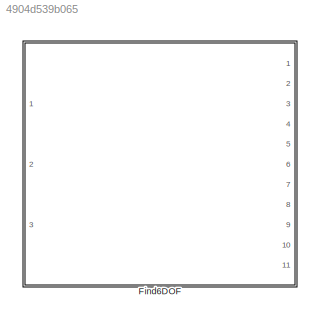
MODEL slx_4904d539b065
KIND library
CONFIG AbsTol = auto
CONFIG EnableMultiTasking = off
CONFIG FixedStep = auto
CONFIG MaxStep = auto
CONFIG MinStep = auto
CONFIG RelTol = 1e-3
CONFIG SampleTimeConstraint = Unconstrained
CONFIG Solver = VariableStepAuto
CONFIG SolverName = VariableStepAuto
CONFIG StartTime = 0.0
CONFIG StopTime = 10.0
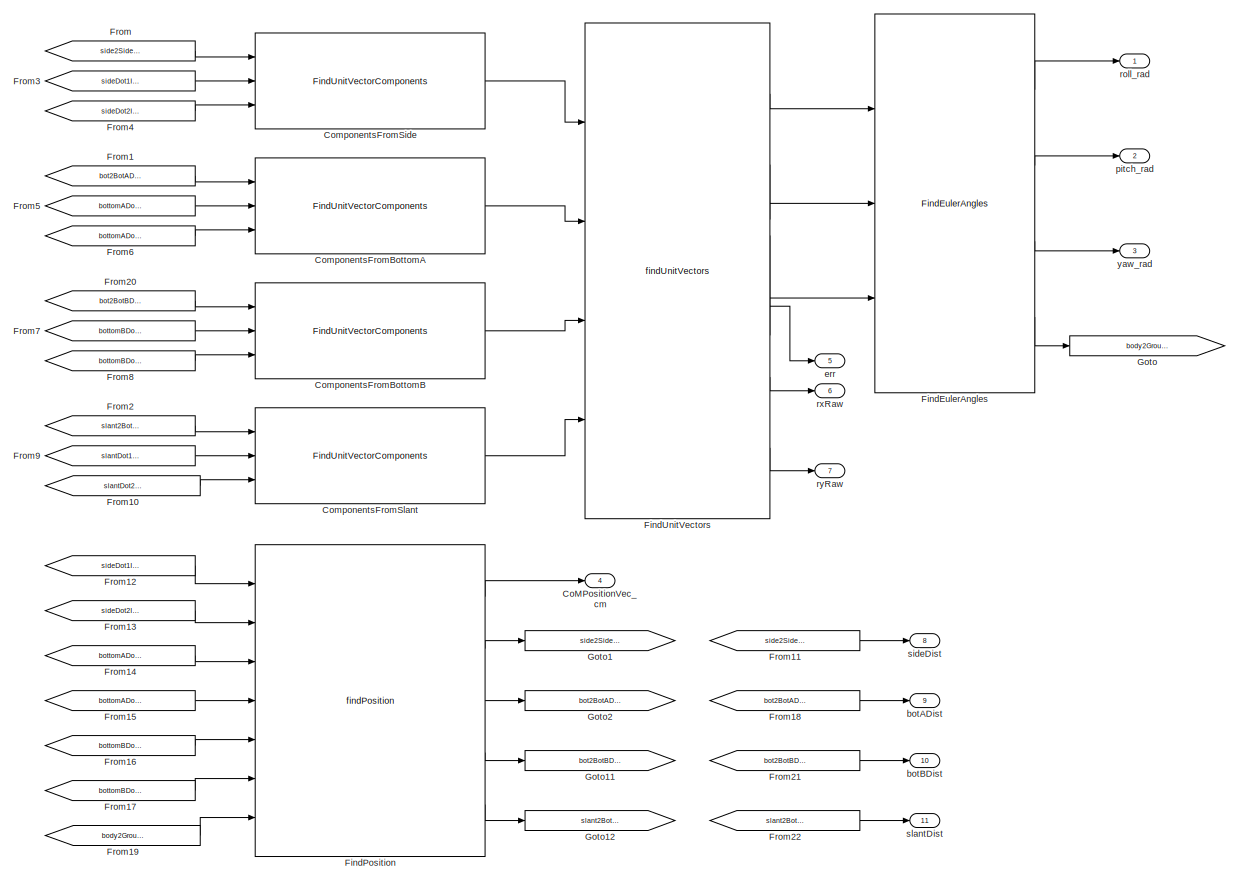
[diagram: Find6DOF - part 1/2, center side, full height]
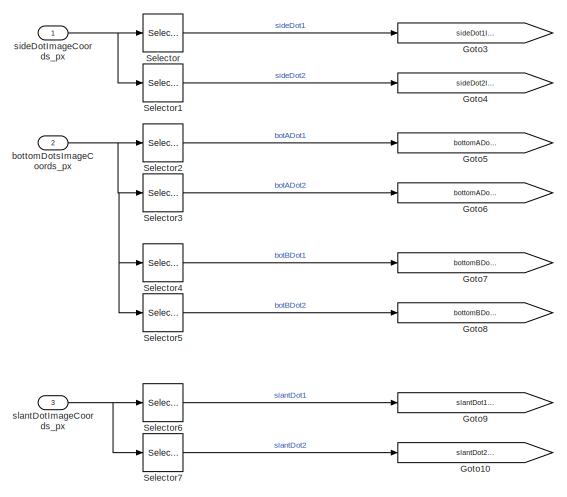
[diagram: Find6DOF - part 2/2, middle left region]
BLOCK [SubSystem] Find6DOF
  Ports = [3, 11]
  RequestExecContextInheritance = off
BLOCK [Outport] Find6DOF/CoMPositionVec_cm
  IconDisplay = Port number
  Port = 4
  Unit = cm
BLOCK [Reference] Find6DOF/ComponentsFromBottomA  REF=FindUnitVectorComponents_ul/FindUnitVectorComponents
  Ports = [3, 1]
  SourceBlock = FindUnitVectorComponents_ul/FindUnitVectorComponents
BLOCK [Reference] Find6DOF/ComponentsFromBottomB  REF=FindUnitVectorComponents_ul/FindUnitVectorComponents
  Ports = [3, 1]
  SourceBlock = FindUnitVectorComponents_ul/FindUnitVectorComponents
BLOCK [Reference] Find6DOF/ComponentsFromSide  REF=FindUnitVectorComponents_ul/FindUnitVectorComponents
  Ports = [3, 1]
  SourceBlock = FindUnitVectorComponents_ul/FindUnitVectorComponents
BLOCK [Reference] Find6DOF/ComponentsFromSlant  REF=FindUnitVectorComponents_ul/FindUnitVectorComponents
  Ports = [3, 1]
  SourceBlock = FindUnitVectorComponents_ul/FindUnitVectorComponents
BLOCK [Reference] Find6DOF/FindEulerAngles  REF=findEulerAngles_ul/FindEulerAngles
  Ports = [3, 4]
  SourceBlock = findEulerAngles_ul/FindEulerAngles
  SourceType = SubSystem
BLOCK [Reference] Find6DOF/FindPosition  REF=findPosition_ul/findPosition
  Ports = [7, 5]
  SourceBlock = findPosition_ul/findPosition
BLOCK [Reference] Find6DOF/FindUnitVectors  REF=findUnitVectors_ul/findUnitVectors
  Ports = [4, 6]
  SourceBlock = findUnitVectors_ul/findUnitVectors
BLOCK [From] Find6DOF/From
  GotoTag = side2SideDist_cm
BLOCK [From] Find6DOF/From1
  GotoTag = bot2BotADist_cm
BLOCK [From] Find6DOF/From10
  GotoTag = slantDot2ImageCoords_px
BLOCK [From] Find6DOF/From11
  GotoTag = side2SideDist_cm
BLOCK [From] Find6DOF/From12
  GotoTag = sideDot1ImageCoords_px
BLOCK [From] Find6DOF/From13
  GotoTag = sideDot2ImageCoords_px
BLOCK [From] Find6DOF/From14
  GotoTag = bottomADot1ImageCoords_px
BLOCK [From] Find6DOF/From15
  GotoTag = bottomADot2ImageCoords_px
BLOCK [From] Find6DOF/From16
  GotoTag = bottomBDot1ImageCoords_px
BLOCK [From] Find6DOF/From17
  GotoTag = bottomBDot2ImageCoords_px
BLOCK [From] Find6DOF/From18
  GotoTag = bot2BotADist_cm
BLOCK [From] Find6DOF/From19
  GotoTag = body2GroundRotationMatrix
BLOCK [From] Find6DOF/From2
  GotoTag = slant2BotBDist_cm
BLOCK [From] Find6DOF/From20
  GotoTag = bot2BotBDist_cm
BLOCK [From] Find6DOF/From21
  GotoTag = bot2BotBDist_cm
BLOCK [From] Find6DOF/From22
  GotoTag = slant2BotBDist_cm
BLOCK [From] Find6DOF/From3
  GotoTag = sideDot1ImageCoords_px
BLOCK [From] Find6DOF/From4
  GotoTag = sideDot2ImageCoords_px
BLOCK [From] Find6DOF/From5
  GotoTag = bottomADot1ImageCoords_px
BLOCK [From] Find6DOF/From6
  GotoTag = bottomADot2ImageCoords_px
BLOCK [From] Find6DOF/From7
  GotoTag = bottomBDot1ImageCoords_px
BLOCK [From] Find6DOF/From8
  GotoTag = bottomBDot2ImageCoords_px
BLOCK [From] Find6DOF/From9
  GotoTag = slantDot1ImageCoords_px
BLOCK [Goto] Find6DOF/Goto
  GotoTag = body2GroundRotationMatrix
BLOCK [Goto] Find6DOF/Goto1
  GotoTag = side2SideDist_cm
BLOCK [Goto] Find6DOF/Goto10
  GotoTag = slantDot2ImageCoords_px
BLOCK [Goto] Find6DOF/Goto11
  GotoTag = bot2BotBDist_cm
BLOCK [Goto] Find6DOF/Goto12
  GotoTag = slant2BotBDist_cm
BLOCK [Goto] Find6DOF/Goto2
  GotoTag = bot2BotADist_cm
BLOCK [Goto] Find6DOF/Goto3
  GotoTag = sideDot1ImageCoords_px
BLOCK [Goto] Find6DOF/Goto4
  GotoTag = sideDot2ImageCoords_px
BLOCK [Goto] Find6DOF/Goto5
  GotoTag = bottomADot1ImageCoords_px
BLOCK [Goto] Find6DOF/Goto6
  GotoTag = bottomADot2ImageCoords_px
BLOCK [Goto] Find6DOF/Goto7
  GotoTag = bottomBDot1ImageCoords_px
BLOCK [Goto] Find6DOF/Goto8
  GotoTag = bottomBDot2ImageCoords_px
BLOCK [Goto] Find6DOF/Goto9
  GotoTag = slantDot1ImageCoords_px
BLOCK [Selector] Find6DOF/Selector
  IndexOptions = Index vector (dialog)
  Indices = [1 2]
  InputPortWidth = 4
  OutputSizes = 1
  Ports = [1, 1]
BLOCK [Selector] Find6DOF/Selector1
  IndexOptions = Index vector (dialog)
  Indices = [3 4]
  InputPortWidth = 4
  OutputSizes = 1
  Ports = [1, 1]
BLOCK [Selector] Find6DOF/Selector2
  IndexOptions = Index vector (dialog)
  Indices = [1 2]
  InputPortWidth = 8
  OutputSizes = 1
  Ports = [1, 1]
BLOCK [Selector] Find6DOF/Selector3
  IndexOptions = Index vector (dialog)
  Indices = [3 4]
  InputPortWidth = 8
  OutputSizes = 1
  Ports = [1, 1]
BLOCK [Selector] Find6DOF/Selector4
  IndexOptions = Index vector (dialog)
  Indices = [5 6]
  InputPortWidth = 8
  OutputSizes = 1
  Ports = [1, 1]
BLOCK [Selector] Find6DOF/Selector5
  IndexOptions = Index vector (dialog)
  Indices = [7 8]
  InputPortWidth = 8
  OutputSizes = 1
  Ports = [1, 1]
BLOCK [Selector] Find6DOF/Selector6
  IndexOptions = Index vector (dialog)
  Indices = [1 2]
  InputPortWidth = 4
  OutputSizes = 1
  Ports = [1, 1]
BLOCK [Selector] Find6DOF/Selector7
  IndexOptions = Index vector (dialog)
  Indices = [3 4]
  InputPortWidth = 4
  OutputSizes = 1
  Ports = [1, 1]
BLOCK [Outport] Find6DOF/botADist
  IconDisplay = Port number
  Port = 9
BLOCK [Outport] Find6DOF/botBDist
  IconDisplay = Port number
  Port = 10
BLOCK [Inport] Find6DOF/bottomDotsImageCoords_px
  IconDisplay = Port number
  Port = 2
BLOCK [Outport] Find6DOF/err
  IconDisplay = Port number
  Port = 5
BLOCK [Outport] Find6DOF/pitch_rad
  IconDisplay = Port number
  Port = 2
  Unit = rad
BLOCK [Outport] Find6DOF/roll_rad
  IconDisplay = Port number
  Unit = rad
BLOCK [Outport] Find6DOF/rxRaw
  IconDisplay = Port number
  Port = 6
BLOCK [Outport] Find6DOF/ryRaw
  IconDisplay = Port number
  Port = 7
BLOCK [Outport] Find6DOF/sideDist
  IconDisplay = Port number
  Port = 8
BLOCK [Inport] Find6DOF/sideDotImageCoords_px
  IconDisplay = Port number
BLOCK [Outport] Find6DOF/slantDist
  IconDisplay = Port number
  Port = 11
BLOCK [Inport] Find6DOF/slantDotImageCoords_px
  IconDisplay = Port number
  Port = 3
BLOCK [Outport] Find6DOF/yaw_rad
  IconDisplay = Port number
  Port = 3
  Unit = rad
LINE Find6DOF/ComponentsFromBottomA:1 -> Find6DOF/FindUnitVectors:2
LINE Find6DOF/ComponentsFromBottomB:1 -> Find6DOF/FindUnitVectors:3
LINE Find6DOF/ComponentsFromSide:1 -> Find6DOF/FindUnitVectors:1
LINE Find6DOF/ComponentsFromSlant:1 -> Find6DOF/FindUnitVectors:4
LINE Find6DOF/FindEulerAngles:1 -> Find6DOF/roll_rad:1
LINE Find6DOF/FindEulerAngles:2 -> Find6DOF/pitch_rad:1
LINE Find6DOF/FindEulerAngles:3 -> Find6DOF/yaw_rad:1
LINE Find6DOF/FindEulerAngles:4 -> Find6DOF/Goto:1
LINE Find6DOF/FindPosition:1 -> Find6DOF/CoMPositionVec_cm:1
LINE Find6DOF/FindPosition:2 -> Find6DOF/Goto1:1
LINE Find6DOF/FindPosition:3 -> Find6DOF/Goto2:1
LINE Find6DOF/FindPosition:4 -> Find6DOF/Goto11:1
LINE Find6DOF/FindPosition:5 -> Find6DOF/Goto12:1
LINE Find6DOF/FindUnitVectors:1 -> Find6DOF/FindEulerAngles:1
LINE Find6DOF/FindUnitVectors:2 -> Find6DOF/FindEulerAngles:2
LINE Find6DOF/FindUnitVectors:3 -> Find6DOF/FindEulerAngles:3
LINE Find6DOF/FindUnitVectors:4 -> Find6DOF/err:1
LINE Find6DOF/FindUnitVectors:5 -> Find6DOF/rxRaw:1
LINE Find6DOF/FindUnitVectors:6 -> Find6DOF/ryRaw:1
LINE Find6DOF/From10:1 -> Find6DOF/ComponentsFromSlant:3
LINE Find6DOF/From11:1 -> Find6DOF/sideDist:1
LINE Find6DOF/From12:1 -> Find6DOF/FindPosition:1
LINE Find6DOF/From13:1 -> Find6DOF/FindPosition:2
LINE Find6DOF/From14:1 -> Find6DOF/FindPosition:3
LINE Find6DOF/From15:1 -> Find6DOF/FindPosition:4
LINE Find6DOF/From16:1 -> Find6DOF/FindPosition:5
LINE Find6DOF/From17:1 -> Find6DOF/FindPosition:6
LINE Find6DOF/From18:1 -> Find6DOF/botADist:1
LINE Find6DOF/From19:1 -> Find6DOF/FindPosition:7
LINE Find6DOF/From1:1 -> Find6DOF/ComponentsFromBottomA:1
LINE Find6DOF/From20:1 -> Find6DOF/ComponentsFromBottomB:1
LINE Find6DOF/From21:1 -> Find6DOF/botBDist:1
LINE Find6DOF/From22:1 -> Find6DOF/slantDist:1
LINE Find6DOF/From2:1 -> Find6DOF/ComponentsFromSlant:1
LINE Find6DOF/From3:1 -> Find6DOF/ComponentsFromSide:2
LINE Find6DOF/From4:1 -> Find6DOF/ComponentsFromSide:3
LINE Find6DOF/From5:1 -> Find6DOF/ComponentsFromBottomA:2
LINE Find6DOF/From6:1 -> Find6DOF/ComponentsFromBottomA:3
LINE Find6DOF/From7:1 -> Find6DOF/ComponentsFromBottomB:2
LINE Find6DOF/From8:1 -> Find6DOF/ComponentsFromBottomB:3
LINE Find6DOF/From9:1 -> Find6DOF/ComponentsFromSlant:2
LINE Find6DOF/From:1 -> Find6DOF/ComponentsFromSide:1
LINE Find6DOF/Selector1:1 -> Find6DOF/Goto4:1
LINE Find6DOF/Selector2:1 -> Find6DOF/Goto5:1
LINE Find6DOF/Selector3:1 -> Find6DOF/Goto6:1
LINE Find6DOF/Selector4:1 -> Find6DOF/Goto7:1
LINE Find6DOF/Selector5:1 -> Find6DOF/Goto8:1
LINE Find6DOF/Selector6:1 -> Find6DOF/Goto9:1
LINE Find6DOF/Selector7:1 -> Find6DOF/Goto10:1
LINE Find6DOF/Selector:1 -> Find6DOF/Goto3:1
NET Find6DOF/bottomDotsImageCoords_px:1 -> Find6DOF/Selector2:1, Find6DOF/Selector3:1, Find6DOF/Selector4:1, Find6DOF/Selector5:1
NET Find6DOF/sideDotImageCoords_px:1 -> Find6DOF/Selector1:1, Find6DOF/Selector:1
NET Find6DOF/slantDotImageCoords_px:1 -> Find6DOF/Selector6:1, Find6DOF/Selector7:1
note: NET lines group one-source signal fan-out (src -> all destinations, sorted); 1:1 wires keep LINE
